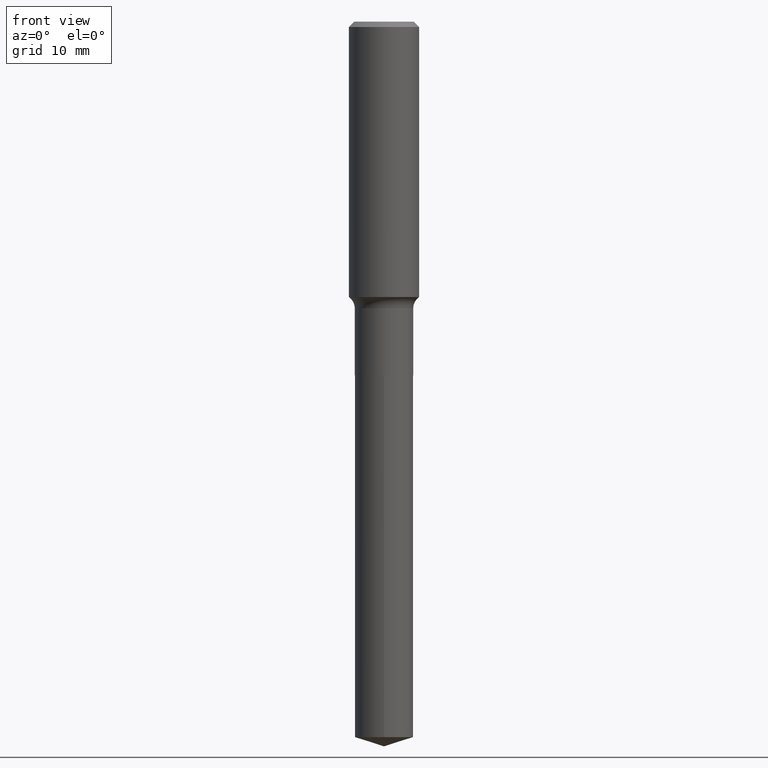
[diagram: clean part render]
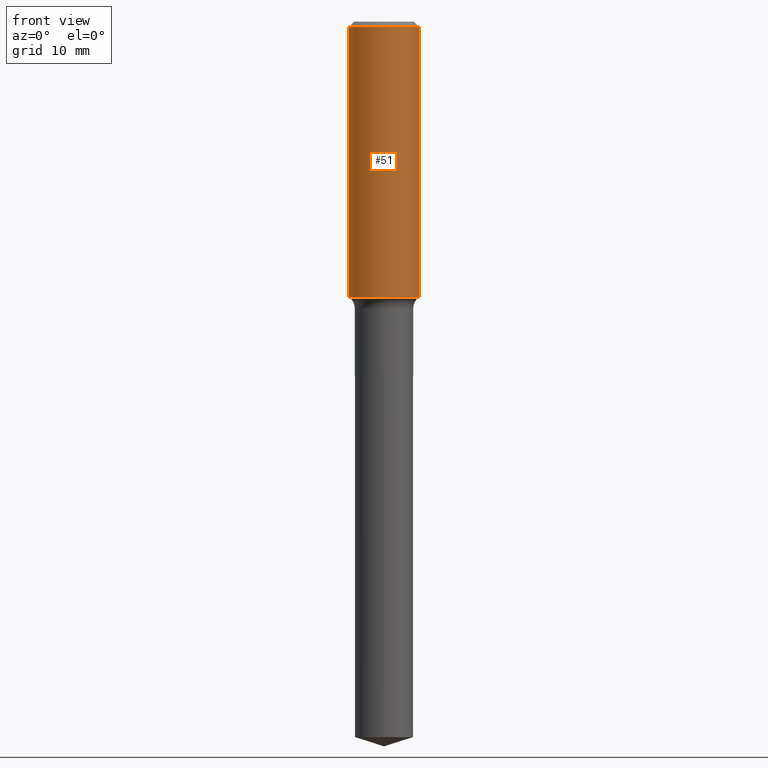
[diagram: same view with one face highlighted and labeled with its STEP entity id]
A machine part, front view. The second image highlights one B-rep face of the part: STEP entity #51.
In plain terms, the highlighted cylindrical surface (edge-blend (fillet) strip) has radius 5 mm, axis along (-0, 0, 1).
Its self-contained STEP definition (entity closure, byte-faithful):
#2 = DIRECTION ( 'NONE',  ( -2.445468806185136597E-29, 3.491481338843145583E-15, 1.000000000000000000 ) ) ;
#9 = CARTESIAN_POINT ( 'NONE',  ( -0.1968500000000000527, -1.342112519284219140E-15, -0.02952750000000022371 ) ) ;
#29 = CARTESIAN_POINT ( 'NONE',  ( -0.1968500000000001915, -3.979833698679504381E-15, -1.540474243464055704 ) ) ;
#51 = ADVANCED_FACE ( 'NONE', ( #75 ), #449, .T. ) ;
#58 = ORIENTED_EDGE ( 'NONE', *, *, #323, .T. ) ;
#64 = VERTEX_POINT ( 'NONE', #29 ) ;
#69 = DIRECTION ( 'NONE',  ( -2.445468806185136597E-29, 3.491481338843145583E-15, 1.000000000000000000 ) ) ;
#70 = CIRCLE ( 'NONE', #115, 0.1968500000000000527 ) ;
#75 = FACE_OUTER_BOUND ( 'NONE', #327, .T. ) ;
#91 = EDGE_CURVE ( 'NONE', #183, #103, #70, .T. ) ;
#98 = VECTOR ( 'NONE', #466, 39.37007874015748143 ) ;
#103 = VERTEX_POINT ( 'NONE', #311 ) ;
#115 = AXIS2_PLACEMENT_3D ( 'NONE', #490, #2, #343 ) ;
#135 = CARTESIAN_POINT ( 'NONE',  ( 0.1968500000000001915, -6.753133277125806144E-15, -1.540474243464055704 ) ) ;
#183 = VERTEX_POINT ( 'NONE', #9 ) ;
#191 = LINE ( 'NONE', #261, #378 ) ;
#195 = AXIS2_PLACEMENT_3D ( 'NONE', #238, #69, #231 ) ;
#214 = VERTEX_POINT ( 'NONE', #135 ) ;
#220 = CARTESIAN_POINT ( 'NONE',  ( 0.1968500000000001082, -1.374596203102542397E-15, 9.598753983154305062E-30 ) ) ;
#231 = DIRECTION ( 'NONE',  ( 1.000000000000000000, -6.982962677686266711E-15, 0.000000000000000000 ) ) ;
#238 = CARTESIAN_POINT ( 'NONE',  ( 3.767181709122995344E-29, -5.378537074023262958E-15, -1.540474243464055704 ) ) ;
#245 = DIRECTION ( 'NONE',  ( 1.000000000000000000, -6.982962677686266711E-15, 4.876176775795935793E-29 ) ) ;
#261 = CARTESIAN_POINT ( 'NONE',  ( -0.1968500000000001082, 1.398703375343757985E-15, -9.682923725166787881E-30 ) ) ;
#266 = EDGE_CURVE ( 'NONE', #64, #183, #191, .T. ) ;
#280 = CARTESIAN_POINT ( 'NONE',  ( 0.000000000000000000, 0.000000000000000000, 0.000000000000000000 ) ) ;
#311 = CARTESIAN_POINT ( 'NONE',  ( 0.1968500000000000527, -1.477690918335233688E-15, -0.02952750000000022371 ) ) ;
#323 = EDGE_CURVE ( 'NONE', #64, #214, #426, .T. ) ;
#327 = EDGE_LOOP ( 'NONE', ( #355, #58, #479, #406 ) ) ;
#337 = DIRECTION ( 'NONE',  ( -2.445468806185136877E-29, 3.491481338843145188E-15, 1.000000000000000000 ) ) ;
#343 = DIRECTION ( 'NONE',  ( 1.000000000000000000, -6.982962677686266711E-15, 0.000000000000000000 ) ) ;
#355 = ORIENTED_EDGE ( 'NONE', *, *, #266, .F. ) ;
#378 = VECTOR ( 'NONE', #337, 39.37007874015748143 ) ;
#403 = AXIS2_PLACEMENT_3D ( 'NONE', #280, #420, #245 ) ;
#406 = ORIENTED_EDGE ( 'NONE', *, *, #91, .F. ) ;
#412 = EDGE_CURVE ( 'NONE', #214, #103, #475, .T. ) ;
#420 = DIRECTION ( 'NONE',  ( -2.445468806185136597E-29, 3.491481338843145583E-15, 1.000000000000000000 ) ) ;
#426 = CIRCLE ( 'NONE', #195, 0.1968500000000001915 ) ;
#449 = CYLINDRICAL_SURFACE ( 'NONE', #403, 0.1968500000000001082 ) ;
#466 = DIRECTION ( 'NONE',  ( -2.445468806185136877E-29, 3.491481338843145188E-15, 1.000000000000000000 ) ) ;
#475 = LINE ( 'NONE', #220, #98 ) ;
#479 = ORIENTED_EDGE ( 'NONE', *, *, #412, .T. ) ;
#490 = CARTESIAN_POINT ( 'NONE',  ( 7.220858017463217368E-31, -1.030947152326917719E-16, -0.02952750000000022371 ) ) ;